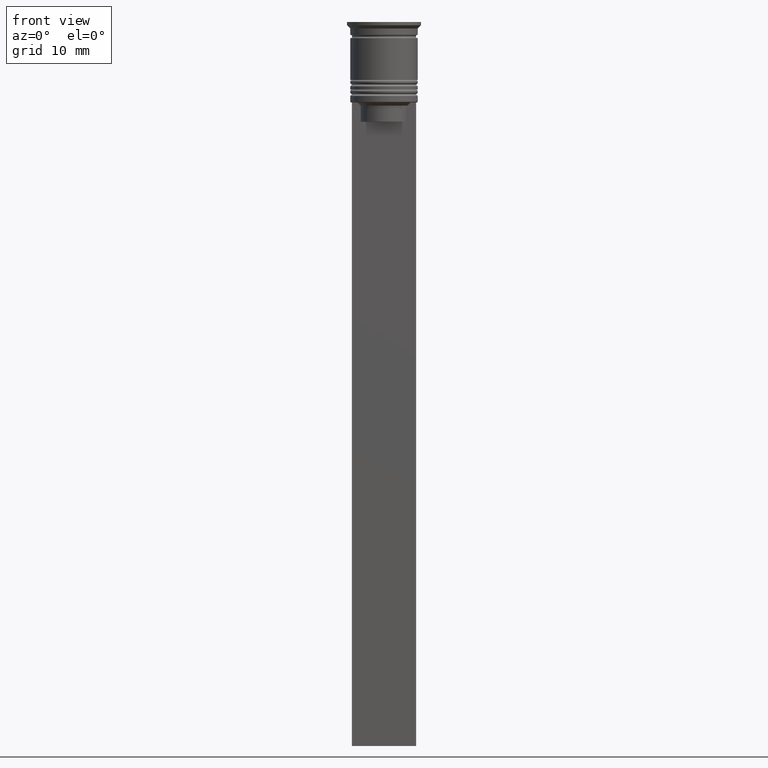
[diagram: clean part render]
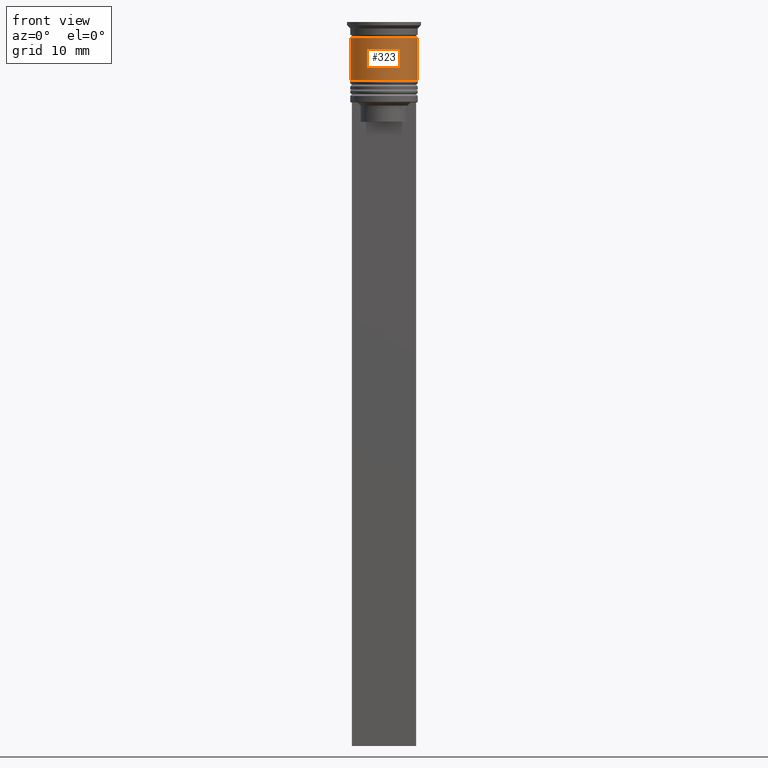
[diagram: same view with one face highlighted and labeled with its STEP entity id]
A machine part, front view. The second image highlights one B-rep face of the part: STEP entity #323.
In plain terms, the highlighted cylindrical surface (edge-blend (fillet) strip) has radius 5.25 mm, axis along (-0, -0, 1).
Its self-contained STEP definition (entity closure, byte-faithful):
#119 = LINE ( 'NONE', #1937, #1892 ) ;
#175 = ORIENTED_EDGE ( 'NONE', *, *, #2163, .F. ) ;
#193 = EDGE_CURVE ( 'NONE', #1505, #1587, #481, .T. ) ;
#197 = DIRECTION ( 'NONE',  ( -0.000000000000000000, -0.000000000000000000, 1.000000000000000000 ) ) ;
#323 = ADVANCED_FACE ( 'NONE', ( #427 ), #2044, .T. ) ;
#336 = CIRCLE ( 'NONE', #814, 5.250000000000000888 ) ;
#373 = DIRECTION ( 'NONE',  ( 1.000000000000000000, 0.000000000000000000, 0.000000000000000000 ) ) ;
#427 = FACE_OUTER_BOUND ( 'NONE', #735, .T. ) ;
#437 = CARTESIAN_POINT ( 'NONE',  ( 5.250000000000000888, 0.000000000000000000, -9.000000000000001776 ) ) ;
#481 = CIRCLE ( 'NONE', #1501, 5.249999999999999112 ) ;
#652 = CARTESIAN_POINT ( 'NONE',  ( -5.250000000000000888, 6.429395695523605139E-16, -9.000000000000001776 ) ) ;
#654 = CARTESIAN_POINT ( 'NONE',  ( -5.249999999999999112, 6.429395695523604153E-16, -2.499999999999999556 ) ) ;
#670 = EDGE_CURVE ( 'NONE', #2022, #1587, #2017, .T. ) ;
#735 = EDGE_LOOP ( 'NONE', ( #175, #1055, #1801, #1599 ) ) ;
#814 = AXIS2_PLACEMENT_3D ( 'NONE', #1644, #197, #1307 ) ;
#881 = CARTESIAN_POINT ( 'NONE',  ( 0.000000000000000000, 0.000000000000000000, -2.499999999999999556 ) ) ;
#942 = CARTESIAN_POINT ( 'NONE',  ( 5.250000000000000000, 0.000000000000000000, 0.000000000000000000 ) ) ;
#950 = DIRECTION ( 'NONE',  ( -0.000000000000000000, -0.000000000000000000, 1.000000000000000000 ) ) ;
#1025 = DIRECTION ( 'NONE',  ( -0.000000000000000000, -0.000000000000000000, 1.000000000000000000 ) ) ;
#1055 = ORIENTED_EDGE ( 'NONE', *, *, #1336, .T. ) ;
#1307 = DIRECTION ( 'NONE',  ( 1.000000000000000000, 0.000000000000000000, 0.000000000000000000 ) ) ;
#1336 = EDGE_CURVE ( 'NONE', #1973, #2022, #336, .T. ) ;
#1501 = AXIS2_PLACEMENT_3D ( 'NONE', #881, #2339, #373 ) ;
#1505 = VERTEX_POINT ( 'NONE', #654 ) ;
#1587 = VERTEX_POINT ( 'NONE', #2055 ) ;
#1599 = ORIENTED_EDGE ( 'NONE', *, *, #193, .F. ) ;
#1620 = VECTOR ( 'NONE', #950, 1000.000000000000000 ) ;
#1644 = CARTESIAN_POINT ( 'NONE',  ( 0.000000000000000000, 0.000000000000000000, -9.000000000000001776 ) ) ;
#1708 = DIRECTION ( 'NONE',  ( -0.000000000000000000, -0.000000000000000000, 1.000000000000000000 ) ) ;
#1801 = ORIENTED_EDGE ( 'NONE', *, *, #670, .T. ) ;
#1892 = VECTOR ( 'NONE', #1025, 1000.000000000000000 ) ;
#1937 = CARTESIAN_POINT ( 'NONE',  ( -5.250000000000000000, 6.429395695523604153E-16, 0.000000000000000000 ) ) ;
#1973 = VERTEX_POINT ( 'NONE', #652 ) ;
#2017 = LINE ( 'NONE', #942, #1620 ) ;
#2022 = VERTEX_POINT ( 'NONE', #437 ) ;
#2044 = CYLINDRICAL_SURFACE ( 'NONE', #2184, 5.250000000000000000 ) ;
#2055 = CARTESIAN_POINT ( 'NONE',  ( 5.249999999999999112, 0.000000000000000000, -2.499999999999999556 ) ) ;
#2074 = DIRECTION ( 'NONE',  ( 1.000000000000000000, 0.000000000000000000, 0.000000000000000000 ) ) ;
#2163 = EDGE_CURVE ( 'NONE', #1973, #1505, #119, .T. ) ;
#2184 = AXIS2_PLACEMENT_3D ( 'NONE', #2210, #1708, #2074 ) ;
#2210 = CARTESIAN_POINT ( 'NONE',  ( 0.000000000000000000, 0.000000000000000000, 0.000000000000000000 ) ) ;
#2339 = DIRECTION ( 'NONE',  ( -0.000000000000000000, -0.000000000000000000, 1.000000000000000000 ) ) ;